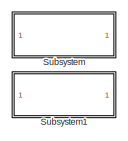
[diagram: root canvas - part 1/4, top center region]
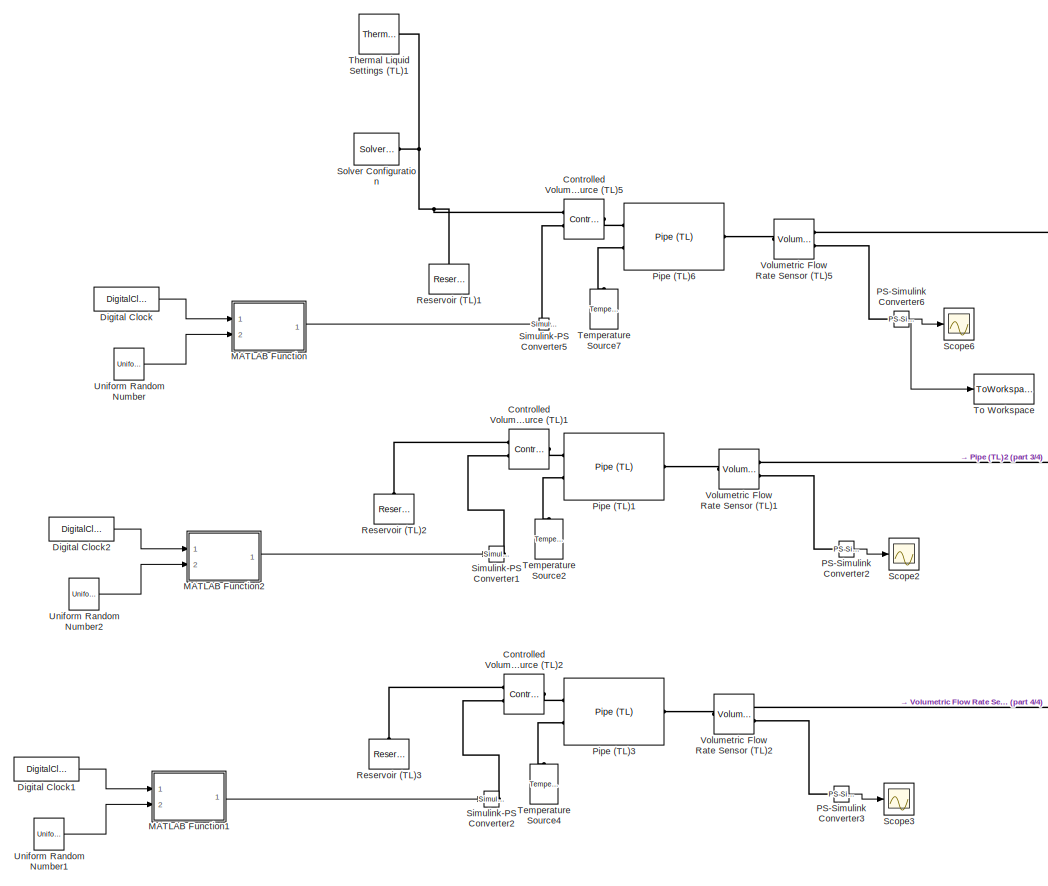
[diagram: root canvas - part 2/4, middle left region]
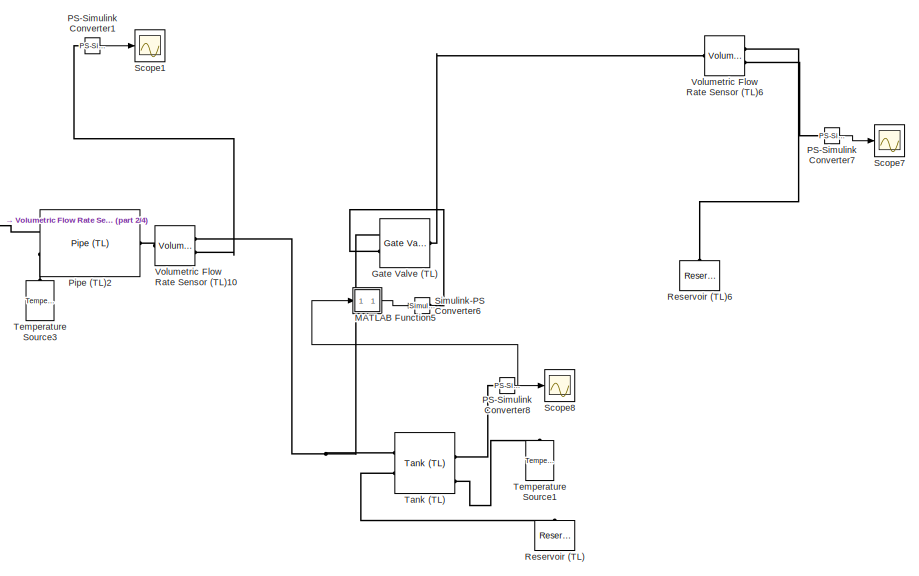
[diagram: root canvas - part 3/4, middle right region]
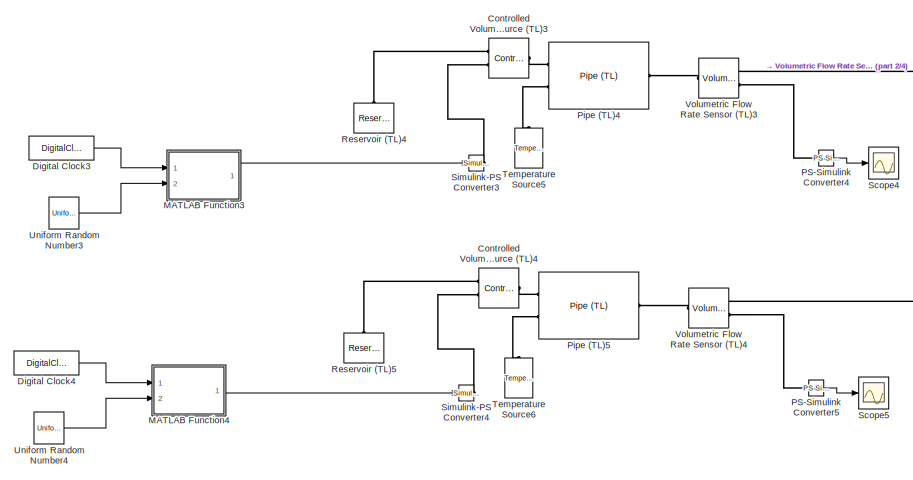
[diagram: root canvas - part 4/4, bottom left region]
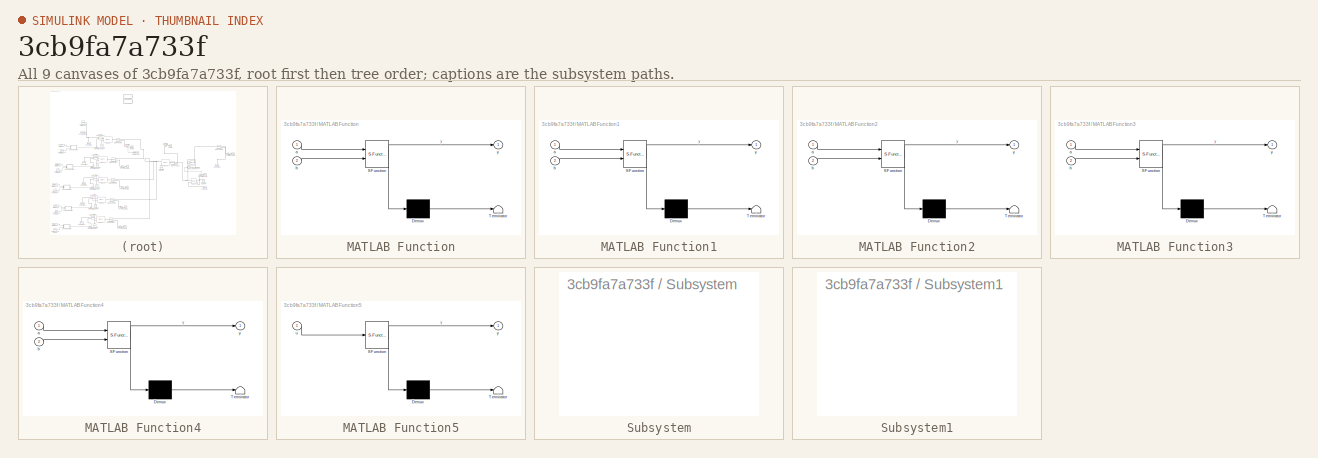
[diagram: thumbnail index - all 9 canvases of the model, root first then tree order]
MODEL slx_3cb9fa7a733f
KIND model
CONFIG AbsTol = 1.0e-3
CONFIG EnableMultiTasking = on
CONFIG FixedStep = 1
CONFIG MaxStep = auto
CONFIG MinStep = auto
CONFIG RelTol = 1.0e-3
CONFIG SampleTimeConstraint = Unconstrained
CONFIG Solver = VariableStepAuto
CONFIG SolverName = VariableStepAuto
CONFIG StartTime = 0
CONFIG StopTime = 24
BLOCK [Reference] Controlled Volumetric Flow Rate Source (TL)1  REF=fl_lib/Thermal Liquid/Sources/Controlled
Volumetric Flow Rate
Source (TL)
  Ports = [0, 0, 0, 0, 0, 2, 1]
  SourceBlock = fl_lib/Thermal Liquid/Sources/Controlled\nVolumetric Flow Rate\nSource (TL)
  SourceProductBaseCode = SS
  SourceProductName = Simscape
  SourceType = Controlled\nVolumetric Flow Rate\nSource (TL)
BLOCK [Reference] Controlled Volumetric Flow Rate Source (TL)2  REF=fl_lib/Thermal Liquid/Sources/Controlled
Volumetric Flow Rate
Source (TL)
  Ports = [0, 0, 0, 0, 0, 2, 1]
  SourceBlock = fl_lib/Thermal Liquid/Sources/Controlled\nVolumetric Flow Rate\nSource (TL)
  SourceProductBaseCode = SS
  SourceProductName = Simscape
  SourceType = Controlled\nVolumetric Flow Rate\nSource (TL)
BLOCK [Reference] Controlled Volumetric Flow Rate Source (TL)3  REF=fl_lib/Thermal Liquid/Sources/Controlled
Volumetric Flow Rate
Source (TL)
  Ports = [0, 0, 0, 0, 0, 2, 1]
  SourceBlock = fl_lib/Thermal Liquid/Sources/Controlled\nVolumetric Flow Rate\nSource (TL)
  SourceProductBaseCode = SS
  SourceProductName = Simscape
  SourceType = Controlled\nVolumetric Flow Rate\nSource (TL)
BLOCK [Reference] Controlled Volumetric Flow Rate Source (TL)4  REF=fl_lib/Thermal Liquid/Sources/Controlled
Volumetric Flow Rate
Source (TL)
  Ports = [0, 0, 0, 0, 0, 2, 1]
  SourceBlock = fl_lib/Thermal Liquid/Sources/Controlled\nVolumetric Flow Rate\nSource (TL)
  SourceProductBaseCode = SS
  SourceProductName = Simscape
  SourceType = Controlled\nVolumetric Flow Rate\nSource (TL)
BLOCK [Reference] Controlled Volumetric Flow Rate Source (TL)5  REF=fl_lib/Thermal Liquid/Sources/Controlled
Volumetric Flow Rate
Source (TL)
  Ports = [0, 0, 0, 0, 0, 2, 1]
  SourceBlock = fl_lib/Thermal Liquid/Sources/Controlled\nVolumetric Flow Rate\nSource (TL)
  SourceProductBaseCode = SS
  SourceProductName = Simscape
  SourceType = Controlled\nVolumetric Flow Rate\nSource (TL)
BLOCK [DigitalClock] Digital Clock
BLOCK [DigitalClock] Digital Clock1
BLOCK [DigitalClock] Digital Clock2
BLOCK [DigitalClock] Digital Clock3
BLOCK [DigitalClock] Digital Clock4
BLOCK [Reference] Gate Valve (TL)  REF=SimscapeFluids_lib/Thermal Liquid/Valves & Orifices/Flow Control Valves/Gate Valve (TL)
  Ports = [0, 0, 0, 0, 0, 2, 1]
  SourceBlock = SimscapeFluids_lib/Thermal Liquid/Valves & Orifices/Flow Control Valves/Gate Valve (TL)
  SourceProductBaseCode = SH
  SourceProductName = Simscape Fluids
  SourceType = Gate Valve (TL)
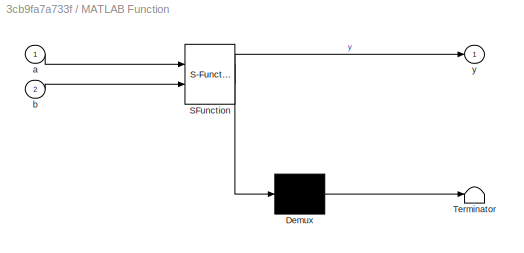
BLOCK [SubSystem] MATLAB Function
  ErrorFcn = Stateflow.Translate.translate
  PermitHierarchicalResolution = ExplicitOnly
  Ports = [2, 1]
  RequestExecContextInheritance = off
  SFBlockType = MATLAB Function
  TreatAsAtomicUnit = on
BLOCK [Demux] MATLAB Function/ Demux 
  Outputs = 1
  Ports = [1, 1]
BLOCK [S-Function] MATLAB Function/ SFunction 
  EnableBusSupport = on
  FunctionName = sf_sfun
  PortCounts = [2 2]
  Ports = [2, 2]
  SFcnIsStateOwnerBlock = off
  SFunctionDeploymentMode = off
  Tag = Stateflow S-Function valveSoneAtos_Simulink 2
BLOCK [Terminator] MATLAB Function/ Terminator 
BLOCK [Inport] MATLAB Function/a
  IconDisplay = Port number
BLOCK [Inport] MATLAB Function/b
  IconDisplay = Port number
  Port = 2
BLOCK [Outport] MATLAB Function/y
  IconDisplay = Port number
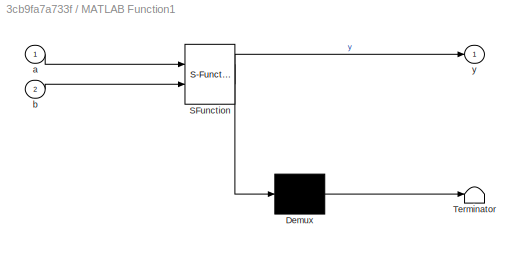
BLOCK [SubSystem] MATLAB Function1
  ErrorFcn = Stateflow.Translate.translate
  PermitHierarchicalResolution = ExplicitOnly
  Ports = [2, 1]
  RequestExecContextInheritance = off
  SFBlockType = MATLAB Function
  TreatAsAtomicUnit = on
BLOCK [Demux] MATLAB Function1/ Demux 
  Outputs = 1
  Ports = [1, 1]
BLOCK [S-Function] MATLAB Function1/ SFunction 
  EnableBusSupport = on
  FunctionName = sf_sfun
  PortCounts = [2 2]
  Ports = [2, 2]
  SFcnIsStateOwnerBlock = off
  SFunctionDeploymentMode = off
  Tag = Stateflow S-Function valveSoneAtos_Simulink 1
BLOCK [Terminator] MATLAB Function1/ Terminator 
BLOCK [Inport] MATLAB Function1/a
  IconDisplay = Port number
BLOCK [Inport] MATLAB Function1/b
  IconDisplay = Port number
  Port = 2
BLOCK [Outport] MATLAB Function1/y
  IconDisplay = Port number
BLOCK [SubSystem] MATLAB Function2
  ErrorFcn = Stateflow.Translate.translate
  PermitHierarchicalResolution = ExplicitOnly
  Ports = [2, 1]
  RequestExecContextInheritance = off
  SFBlockType = MATLAB Function
  TreatAsAtomicUnit = on
BLOCK [Demux] MATLAB Function2/ Demux 
  Outputs = 1
  Ports = [1, 1]
BLOCK [S-Function] MATLAB Function2/ SFunction 
  EnableBusSupport = on
  FunctionName = sf_sfun
  PortCounts = [2 2]
  Ports = [2, 2]
  SFcnIsStateOwnerBlock = off
  SFunctionDeploymentMode = off
  Tag = Stateflow S-Function valveSoneAtos_Simulink 3
BLOCK [Terminator] MATLAB Function2/ Terminator 
BLOCK [Inport] MATLAB Function2/a
  IconDisplay = Port number
BLOCK [Inport] MATLAB Function2/b
  IconDisplay = Port number
  Port = 2
BLOCK [Outport] MATLAB Function2/y
  IconDisplay = Port number
BLOCK [SubSystem] MATLAB Function3
  ErrorFcn = Stateflow.Translate.translate
  PermitHierarchicalResolution = ExplicitOnly
  Ports = [2, 1]
  RequestExecContextInheritance = off
  SFBlockType = MATLAB Function
  TreatAsAtomicUnit = on
BLOCK [Demux] MATLAB Function3/ Demux 
  Outputs = 1
  Ports = [1, 1]
BLOCK [S-Function] MATLAB Function3/ SFunction 
  EnableBusSupport = on
  FunctionName = sf_sfun
  PortCounts = [2 2]
  Ports = [2, 2]
  SFcnIsStateOwnerBlock = off
  SFunctionDeploymentMode = off
  Tag = Stateflow S-Function valveSoneAtos_Simulink 4
BLOCK [Terminator] MATLAB Function3/ Terminator 
BLOCK [Inport] MATLAB Function3/a
  IconDisplay = Port number
BLOCK [Inport] MATLAB Function3/b
  IconDisplay = Port number
  Port = 2
BLOCK [Outport] MATLAB Function3/y
  IconDisplay = Port number
BLOCK [SubSystem] MATLAB Function4
  ErrorFcn = Stateflow.Translate.translate
  PermitHierarchicalResolution = ExplicitOnly
  Ports = [2, 1]
  RequestExecContextInheritance = off
  SFBlockType = MATLAB Function
  TreatAsAtomicUnit = on
BLOCK [Demux] MATLAB Function4/ Demux 
  Outputs = 1
  Ports = [1, 1]
BLOCK [S-Function] MATLAB Function4/ SFunction 
  EnableBusSupport = on
  FunctionName = sf_sfun
  PortCounts = [2 2]
  Ports = [2, 2]
  SFcnIsStateOwnerBlock = off
  SFunctionDeploymentMode = off
  Tag = Stateflow S-Function valveSoneAtos_Simulink 5
BLOCK [Terminator] MATLAB Function4/ Terminator 
BLOCK [Inport] MATLAB Function4/a
  IconDisplay = Port number
BLOCK [Inport] MATLAB Function4/b
  IconDisplay = Port number
  Port = 2
BLOCK [Outport] MATLAB Function4/y
  IconDisplay = Port number
BLOCK [SubSystem] MATLAB Function5
  ErrorFcn = Stateflow.Translate.translate
  PermitHierarchicalResolution = ExplicitOnly
  Ports = [1, 1]
  RequestExecContextInheritance = off
  SFBlockType = MATLAB Function
  TreatAsAtomicUnit = on
BLOCK [Demux] MATLAB Function5/ Demux 
  Outputs = 1
  Ports = [1, 1]
BLOCK [S-Function] MATLAB Function5/ SFunction 
  EnableBusSupport = on
  FunctionName = sf_sfun
  PortCounts = [1 2]
  Ports = [1, 2]
  SFcnIsStateOwnerBlock = off
  SFunctionDeploymentMode = off
  Tag = Stateflow S-Function valveSoneAtos_Simulink 6
BLOCK [Terminator] MATLAB Function5/ Terminator 
BLOCK [Inport] MATLAB Function5/u
  IconDisplay = Port number
BLOCK [Outport] MATLAB Function5/y
  IconDisplay = Port number
BLOCK [Reference] PS-Simulink Converter1  REF=nesl_utility/PS-Simulink
Converter
  Ports = [0, 1, 0, 0, 0, 1]
  SourceBlock = nesl_utility/PS-Simulink\nConverter
  SourceProductBaseCode = SS
  SourceProductName = Simscape
  SourceType = PS-Simulink\nConverter
BLOCK [Reference] PS-Simulink Converter2  REF=nesl_utility/PS-Simulink
Converter
  Ports = [0, 1, 0, 0, 0, 1]
  SourceBlock = nesl_utility/PS-Simulink\nConverter
  SourceProductBaseCode = SS
  SourceProductName = Simscape
  SourceType = PS-Simulink\nConverter
BLOCK [Reference] PS-Simulink Converter3  REF=nesl_utility/PS-Simulink
Converter
  Ports = [0, 1, 0, 0, 0, 1]
  SourceBlock = nesl_utility/PS-Simulink\nConverter
  SourceProductBaseCode = SS
  SourceProductName = Simscape
  SourceType = PS-Simulink\nConverter
BLOCK [Reference] PS-Simulink Converter4  REF=nesl_utility/PS-Simulink
Converter
  Ports = [0, 1, 0, 0, 0, 1]
  SourceBlock = nesl_utility/PS-Simulink\nConverter
  SourceProductBaseCode = SS
  SourceProductName = Simscape
  SourceType = PS-Simulink\nConverter
BLOCK [Reference] PS-Simulink Converter5  REF=nesl_utility/PS-Simulink
Converter
  Ports = [0, 1, 0, 0, 0, 1]
  SourceBlock = nesl_utility/PS-Simulink\nConverter
  SourceProductBaseCode = SS
  SourceProductName = Simscape
  SourceType = PS-Simulink\nConverter
BLOCK [Reference] PS-Simulink Converter6  REF=nesl_utility/PS-Simulink
Converter
  Ports = [0, 1, 0, 0, 0, 1]
  SourceBlock = nesl_utility/PS-Simulink\nConverter
  SourceProductBaseCode = SS
  SourceProductName = Simscape
  SourceType = PS-Simulink\nConverter
BLOCK [Reference] PS-Simulink Converter7  REF=nesl_utility/PS-Simulink
Converter
  Ports = [0, 1, 0, 0, 0, 1]
  SourceBlock = nesl_utility/PS-Simulink\nConverter
  SourceProductBaseCode = SS
  SourceProductName = Simscape
  SourceType = PS-Simulink\nConverter
BLOCK [Reference] PS-Simulink Converter8  REF=nesl_utility/PS-Simulink
Converter
  Ports = [0, 1, 0, 0, 0, 1]
  SourceBlock = nesl_utility/PS-Simulink\nConverter
  SourceProductBaseCode = SS
  SourceProductName = Simscape
  SourceType = PS-Simulink\nConverter
BLOCK [Reference] Pipe (TL)1  REF=fl_lib/Thermal Liquid/Elements/Pipe (TL)
  Ports = [0, 0, 0, 0, 0, 2, 1]
  SourceBlock = fl_lib/Thermal Liquid/Elements/Pipe (TL)
  SourceProductBaseCode = SS
  SourceProductName = Simscape
  SourceType = Pipe (TL)
BLOCK [Reference] Pipe (TL)2  REF=fl_lib/Thermal Liquid/Elements/Pipe (TL)
  Ports = [0, 0, 0, 0, 0, 2, 1]
  SourceBlock = fl_lib/Thermal Liquid/Elements/Pipe (TL)
  SourceProductBaseCode = SS
  SourceProductName = Simscape
  SourceType = Pipe (TL)
BLOCK [Reference] Pipe (TL)3  REF=fl_lib/Thermal Liquid/Elements/Pipe (TL)
  Ports = [0, 0, 0, 0, 0, 2, 1]
  SourceBlock = fl_lib/Thermal Liquid/Elements/Pipe (TL)
  SourceProductBaseCode = SS
  SourceProductName = Simscape
  SourceType = Pipe (TL)
BLOCK [Reference] Pipe (TL)4  REF=fl_lib/Thermal Liquid/Elements/Pipe (TL)
  Ports = [0, 0, 0, 0, 0, 2, 1]
  SourceBlock = fl_lib/Thermal Liquid/Elements/Pipe (TL)
  SourceProductBaseCode = SS
  SourceProductName = Simscape
  SourceType = Pipe (TL)
BLOCK [Reference] Pipe (TL)5  REF=fl_lib/Thermal Liquid/Elements/Pipe (TL)
  Ports = [0, 0, 0, 0, 0, 2, 1]
  SourceBlock = fl_lib/Thermal Liquid/Elements/Pipe (TL)
  SourceProductBaseCode = SS
  SourceProductName = Simscape
  SourceType = Pipe (TL)
BLOCK [Reference] Pipe (TL)6  REF=fl_lib/Thermal Liquid/Elements/Pipe (TL)
  Ports = [0, 0, 0, 0, 0, 2, 1]
  SourceBlock = fl_lib/Thermal Liquid/Elements/Pipe (TL)
  SourceProductBaseCode = SS
  SourceProductName = Simscape
  SourceType = Pipe (TL)
BLOCK [Reference] Reservoir (TL)  REF=fl_lib/Thermal Liquid/Elements/Reservoir (TL)
  Ports = [0, 0, 0, 0, 0, 1]
  SourceBlock = fl_lib/Thermal Liquid/Elements/Reservoir (TL)
  SourceProductBaseCode = SS
  SourceProductName = Simscape
  SourceType = Reservoir (TL)
BLOCK [Reference] Reservoir (TL)1  REF=fl_lib/Thermal Liquid/Elements/Reservoir (TL)
  Ports = [0, 0, 0, 0, 0, 1]
  SourceBlock = fl_lib/Thermal Liquid/Elements/Reservoir (TL)
  SourceProductBaseCode = SS
  SourceProductName = Simscape
  SourceType = Reservoir (TL)
BLOCK [Reference] Reservoir (TL)2  REF=fl_lib/Thermal Liquid/Elements/Reservoir (TL)
  Ports = [0, 0, 0, 0, 0, 1]
  SourceBlock = fl_lib/Thermal Liquid/Elements/Reservoir (TL)
  SourceProductBaseCode = SS
  SourceProductName = Simscape
  SourceType = Reservoir (TL)
BLOCK [Reference] Reservoir (TL)3  REF=fl_lib/Thermal Liquid/Elements/Reservoir (TL)
  Ports = [0, 0, 0, 0, 0, 1]
  SourceBlock = fl_lib/Thermal Liquid/Elements/Reservoir (TL)
  SourceProductBaseCode = SS
  SourceProductName = Simscape
  SourceType = Reservoir (TL)
BLOCK [Reference] Reservoir (TL)4  REF=fl_lib/Thermal Liquid/Elements/Reservoir (TL)
  Ports = [0, 0, 0, 0, 0, 1]
  SourceBlock = fl_lib/Thermal Liquid/Elements/Reservoir (TL)
  SourceProductBaseCode = SS
  SourceProductName = Simscape
  SourceType = Reservoir (TL)
BLOCK [Reference] Reservoir (TL)5  REF=fl_lib/Thermal Liquid/Elements/Reservoir (TL)
  Ports = [0, 0, 0, 0, 0, 1]
  SourceBlock = fl_lib/Thermal Liquid/Elements/Reservoir (TL)
  SourceProductBaseCode = SS
  SourceProductName = Simscape
  SourceType = Reservoir (TL)
BLOCK [Reference] Reservoir (TL)6  REF=fl_lib/Thermal Liquid/Elements/Reservoir (TL)
  Ports = [0, 0, 0, 0, 0, 1]
  SourceBlock = fl_lib/Thermal Liquid/Elements/Reservoir (TL)
  SourceProductBaseCode = SS
  SourceProductName = Simscape
  SourceType = Reservoir (TL)
BLOCK [Scope] Scope1
  Floating = off
  NumInputPorts = 1
  Ports = [1]
  ScopeSpecificationString = Simulink.scopes.TimeScopeBlockCfg('CurrentConfiguration', extmgr.ConfigurationSet(extmgr.Configuration('Core','General UI',true),extmgr.Configuration('Core','Source UI',true),extmgr.Configuration('Sources','WiredSimulink',true,'DataLoggingVariableName','ScopeData1'),extmgr.Configuration('Visuals','Time Domain',true,'SerializedDisplays',{struct('MinYLimReal','-44.04215','MaxYLimReal','4.89349','YLa...<+1439ch>
BLOCK [Scope] Scope2
  Floating = off
  NumInputPorts = 1
  Ports = [1]
  ScopeSpecificationString = Simulink.scopes.TimeScopeBlockCfg('CurrentConfiguration', extmgr.ConfigurationSet(extmgr.Configuration('Core','General UI',true),extmgr.Configuration('Core','Source UI',true),extmgr.Configuration('Sources','WiredSimulink',true,'DataLoggingVariableName','ScopeData2'),extmgr.Configuration('Visuals','Time Domain',true,'SerializedDisplays',{struct('MinYLimReal','-0.86249','MaxYLimReal','7.76238','YLab...<+1439ch>
BLOCK [Scope] Scope3
  Floating = off
  NumInputPorts = 1
  Ports = [1]
  ScopeSpecificationString = Simulink.scopes.TimeScopeBlockCfg('CurrentConfiguration', extmgr.ConfigurationSet(extmgr.Configuration('Core','General UI',true),extmgr.Configuration('Core','Source UI',true),extmgr.Configuration('Sources','WiredSimulink',true,'DataLoggingVariableName','ScopeData3'),extmgr.Configuration('Visuals','Time Domain',true,'SerializedDisplays',{struct('MinYLimReal','-0.49988','MaxYLimReal','4.49888','YLab...<+1436ch>
BLOCK [Scope] Scope4
  Floating = off
  NumInputPorts = 1
  Ports = [1]
  ScopeSpecificationString = Simulink.scopes.TimeScopeBlockCfg('CurrentConfiguration', extmgr.ConfigurationSet(extmgr.Configuration('Core','General UI',true),extmgr.Configuration('Core','Source UI',true),extmgr.Configuration('Sources','WiredSimulink',true,'DataLoggingVariableName','ScopeData4'),extmgr.Configuration('Visuals','Time Domain',true,'SerializedDisplays',{struct('MinYLimReal','-4.99179','MaxYLimReal','11.67286','YLa...<+1439ch>
BLOCK [Scope] Scope5
  Floating = off
  NumInputPorts = 1
  Ports = [1]
  ScopeSpecificationString = Simulink.scopes.TimeScopeBlockCfg('CurrentConfiguration', extmgr.ConfigurationSet(extmgr.Configuration('Core','General UI',true),extmgr.Configuration('Core','Source UI',true),extmgr.Configuration('Sources','WiredSimulink',true,'DataLoggingVariableName','ScopeData5'),extmgr.Configuration('Visuals','Time Domain',true,'SerializedDisplays',{struct('MinYLimReal','-0.49988','MaxYLimReal','4.49888','YLab...<+1436ch>
BLOCK [Scope] Scope6
  Floating = off
  NumInputPorts = 1
  Ports = [1]
  ScopeSpecificationString = Simulink.scopes.TimeScopeBlockCfg('CurrentConfiguration', extmgr.ConfigurationSet(extmgr.Configuration('Core','General UI',true),extmgr.Configuration('Core','Source UI',true),extmgr.Configuration('Sources','WiredSimulink',true),extmgr.Configuration('Visuals','Time Domain',true,'SerializedDisplays',{struct('MinYLimReal','-3.66194','MaxYLimReal','32.95743','YLabelReal','','MinYLimMag','0.00000','Max...<+1448ch>
BLOCK [Scope] Scope7
  Floating = off
  NumInputPorts = 1
  Ports = [1]
  ScopeSpecificationString = Simulink.scopes.TimeScopeBlockCfg('CurrentConfiguration', extmgr.ConfigurationSet(extmgr.Configuration('Core','General UI',true),extmgr.Configuration('Core','Source UI',true),extmgr.Configuration('Sources','WiredSimulink',true,'DataLoggingVariableName','ScopeData1'),extmgr.Configuration('Visuals','Time Domain',true,'SerializedDisplays',{struct('MinYLimReal','-16.69026','MaxYLimReal','150.21238','Y...<+1493ch>
BLOCK [Scope] Scope8
  Floating = off
  NumInputPorts = 1
  Ports = [1]
  ScopeSpecificationString = Simulink.scopes.TimeScopeBlockCfg('CurrentConfiguration', extmgr.ConfigurationSet(extmgr.Configuration('Core','General UI',true),extmgr.Configuration('Core','Source UI',true),extmgr.Configuration('Sources','WiredSimulink',true,'DataLoggingVariableName','ScopeData2'),extmgr.Configuration('Visuals','Time Domain',true,'SerializedDisplays',{struct('MinYLimReal','6.55576','MaxYLimReal','40.99698','YLab...<+1481ch>
BLOCK [Reference] Simulink-PS Converter1  REF=nesl_utility/Simulink-PS
Converter
  Ports = [1, 0, 0, 0, 0, 0, 1]
  SourceBlock = nesl_utility/Simulink-PS\nConverter
  SourceProductBaseCode = SS
  SourceProductName = Simscape
  SourceType = Simulink-PS\nConverter
BLOCK [Reference] Simulink-PS Converter2  REF=nesl_utility/Simulink-PS
Converter
  Ports = [1, 0, 0, 0, 0, 0, 1]
  SourceBlock = nesl_utility/Simulink-PS\nConverter
  SourceProductBaseCode = SS
  SourceProductName = Simscape
  SourceType = Simulink-PS\nConverter
BLOCK [Reference] Simulink-PS Converter3  REF=nesl_utility/Simulink-PS
Converter
  Ports = [1, 0, 0, 0, 0, 0, 1]
  SourceBlock = nesl_utility/Simulink-PS\nConverter
  SourceProductBaseCode = SS
  SourceProductName = Simscape
  SourceType = Simulink-PS\nConverter
BLOCK [Reference] Simulink-PS Converter4  REF=nesl_utility/Simulink-PS
Converter
  Ports = [1, 0, 0, 0, 0, 0, 1]
  SourceBlock = nesl_utility/Simulink-PS\nConverter
  SourceProductBaseCode = SS
  SourceProductName = Simscape
  SourceType = Simulink-PS\nConverter
BLOCK [Reference] Simulink-PS Converter5  REF=nesl_utility/Simulink-PS
Converter
  Ports = [1, 0, 0, 0, 0, 0, 1]
  SourceBlock = nesl_utility/Simulink-PS\nConverter
  SourceProductBaseCode = SS
  SourceProductName = Simscape
  SourceType = Simulink-PS\nConverter
BLOCK [Reference] Simulink-PS Converter6  REF=nesl_utility/Simulink-PS
Converter
  Ports = [1, 0, 0, 0, 0, 0, 1]
  SourceBlock = nesl_utility/Simulink-PS\nConverter
  SourceProductBaseCode = SS
  SourceProductName = Simscape
  SourceType = Simulink-PS\nConverter
BLOCK [Reference] Solver Configuration  REF=nesl_utility/Solver
Configuration
  Ports = [0, 0, 0, 0, 0, 0, 1]
  SourceBlock = nesl_utility/Solver\nConfiguration
  SourceProductBaseCode = SS
  SourceProductName = Simscape
  SourceType = Solver\nConfiguration
BLOCK [SubSystem] Subsystem
  OpenFcn = open_system('simscape')
  Ports = []
  RequestExecContextInheritance = off
  ShowPortLabels = none
BLOCK [SubSystem] Subsystem1
  OpenFcn = load_system('fl_lib');\nopen_system('fl_lib/Thermal Liquid');
  Ports = []
  RequestExecContextInheritance = off
  ShowPortLabels = none
BLOCK [Reference] Tank (TL)  REF=SimscapeFluids_lib/Thermal Liquid/Tanks & Accumulators/Tank (TL)
  Ports = [0, 0, 0, 0, 0, 2, 4]
  SourceBlock = SimscapeFluids_lib/Thermal Liquid/Tanks & Accumulators/Tank (TL)
  SourceProductBaseCode = SH
  SourceProductName = Simscape Fluids
  SourceType = Tank (TL)
BLOCK [Reference] Temperature Source1  REF=fl_lib/Thermal/Thermal Sources/Temperature Source
  Ports = [0, 0, 0, 0, 0, 1]
  SourceBlock = fl_lib/Thermal/Thermal Sources/Temperature Source
  SourceProductBaseCode = SS
  SourceProductName = Simscape
  SourceType = Temperature Source
BLOCK [Reference] Temperature Source2  REF=fl_lib/Thermal/Thermal Sources/Temperature Source
  Ports = [0, 0, 0, 0, 0, 1]
  SourceBlock = fl_lib/Thermal/Thermal Sources/Temperature Source
  SourceProductBaseCode = SS
  SourceProductName = Simscape
  SourceType = Temperature Source
BLOCK [Reference] Temperature Source3  REF=fl_lib/Thermal/Thermal Sources/Temperature Source
  Ports = [0, 0, 0, 0, 0, 1]
  SourceBlock = fl_lib/Thermal/Thermal Sources/Temperature Source
  SourceProductBaseCode = SS
  SourceProductName = Simscape
  SourceType = Temperature Source
BLOCK [Reference] Temperature Source4  REF=fl_lib/Thermal/Thermal Sources/Temperature Source
  Ports = [0, 0, 0, 0, 0, 1]
  SourceBlock = fl_lib/Thermal/Thermal Sources/Temperature Source
  SourceProductBaseCode = SS
  SourceProductName = Simscape
  SourceType = Temperature Source
BLOCK [Reference] Temperature Source5  REF=fl_lib/Thermal/Thermal Sources/Temperature Source
  Ports = [0, 0, 0, 0, 0, 1]
  SourceBlock = fl_lib/Thermal/Thermal Sources/Temperature Source
  SourceProductBaseCode = SS
  SourceProductName = Simscape
  SourceType = Temperature Source
BLOCK [Reference] Temperature Source6  REF=fl_lib/Thermal/Thermal Sources/Temperature Source
  Ports = [0, 0, 0, 0, 0, 1]
  SourceBlock = fl_lib/Thermal/Thermal Sources/Temperature Source
  SourceProductBaseCode = SS
  SourceProductName = Simscape
  SourceType = Temperature Source
BLOCK [Reference] Temperature Source7  REF=fl_lib/Thermal/Thermal Sources/Temperature Source
  Ports = [0, 0, 0, 0, 0, 1]
  SourceBlock = fl_lib/Thermal/Thermal Sources/Temperature Source
  SourceProductBaseCode = SS
  SourceProductName = Simscape
  SourceType = Temperature Source
BLOCK [Reference] Thermal Liquid Settings (TL)1  REF=fl_lib/Thermal Liquid/Utilities/Thermal Liquid
Settings (TL)
  Ports = [0, 0, 0, 0, 0, 0, 1]
  SourceBlock = fl_lib/Thermal Liquid/Utilities/Thermal Liquid\nSettings (TL)
  SourceProductBaseCode = SS
  SourceProductName = Simscape
  SourceType = Thermal Liquid\nSettings (TL)
BLOCK [ToWorkspace] To Workspace
  FixptAsFi = on
  MaxDataPoints = inf
  Ports = [1]
  SampleTime = -1
  Save2DSignal = 3-D array (concatenate along third dimension)
  SaveFormat = Timeseries
  VariableName = TT
BLOCK [UniformRandomNumber] Uniform Random Number
  Maximum = 6
  Minimum = 4
  SampleTime = 1
  VectorParams1D = off
BLOCK [UniformRandomNumber] Uniform Random Number1
  Maximum = 6
  Minimum = 4
  SampleTime = 1
  VectorParams1D = off
BLOCK [UniformRandomNumber] Uniform Random Number2
  Maximum = 6
  Minimum = 4
  SampleTime = 1
  VectorParams1D = off
BLOCK [UniformRandomNumber] Uniform Random Number3
  Maximum = 6
  Minimum = 4
  SampleTime = 1
  VectorParams1D = off
BLOCK [UniformRandomNumber] Uniform Random Number4
  Maximum = 6
  Minimum = 4
  SampleTime = 1
  VectorParams1D = off
BLOCK [Reference] Volumetric Flow Rate Sensor (TL)1  REF=fl_lib/Thermal Liquid/Sensors/Volumetric Flow Rate
Sensor (TL)
  Ports = [0, 0, 0, 0, 0, 1, 2]
  SourceBlock = fl_lib/Thermal Liquid/Sensors/Volumetric Flow Rate\nSensor (TL)
  SourceProductBaseCode = SS
  SourceProductName = Simscape
  SourceType = Volumetric Flow Rate\nSensor (TL)
BLOCK [Reference] Volumetric Flow Rate Sensor (TL)10  REF=fl_lib/Thermal Liquid/Sensors/Volumetric Flow Rate
Sensor (TL)
  Ports = [0, 0, 0, 0, 0, 1, 2]
  SourceBlock = fl_lib/Thermal Liquid/Sensors/Volumetric Flow Rate\nSensor (TL)
  SourceProductBaseCode = SS
  SourceProductName = Simscape
  SourceType = Volumetric Flow Rate\nSensor (TL)
BLOCK [Reference] Volumetric Flow Rate Sensor (TL)2  REF=fl_lib/Thermal Liquid/Sensors/Volumetric Flow Rate
Sensor (TL)
  Ports = [0, 0, 0, 0, 0, 1, 2]
  SourceBlock = fl_lib/Thermal Liquid/Sensors/Volumetric Flow Rate\nSensor (TL)
  SourceProductBaseCode = SS
  SourceProductName = Simscape
  SourceType = Volumetric Flow Rate\nSensor (TL)
BLOCK [Reference] Volumetric Flow Rate Sensor (TL)3  REF=fl_lib/Thermal Liquid/Sensors/Volumetric Flow Rate
Sensor (TL)
  Ports = [0, 0, 0, 0, 0, 1, 2]
  SourceBlock = fl_lib/Thermal Liquid/Sensors/Volumetric Flow Rate\nSensor (TL)
  SourceProductBaseCode = SS
  SourceProductName = Simscape
  SourceType = Volumetric Flow Rate\nSensor (TL)
BLOCK [Reference] Volumetric Flow Rate Sensor (TL)4  REF=fl_lib/Thermal Liquid/Sensors/Volumetric Flow Rate
Sensor (TL)
  Ports = [0, 0, 0, 0, 0, 1, 2]
  SourceBlock = fl_lib/Thermal Liquid/Sensors/Volumetric Flow Rate\nSensor (TL)
  SourceProductBaseCode = SS
  SourceProductName = Simscape
  SourceType = Volumetric Flow Rate\nSensor (TL)
BLOCK [Reference] Volumetric Flow Rate Sensor (TL)5  REF=fl_lib/Thermal Liquid/Sensors/Volumetric Flow Rate
Sensor (TL)
  Ports = [0, 0, 0, 0, 0, 1, 2]
  SourceBlock = fl_lib/Thermal Liquid/Sensors/Volumetric Flow Rate\nSensor (TL)
  SourceProductBaseCode = SS
  SourceProductName = Simscape
  SourceType = Volumetric Flow Rate\nSensor (TL)
BLOCK [Reference] Volumetric Flow Rate Sensor (TL)6  REF=fl_lib/Thermal Liquid/Sensors/Volumetric Flow Rate
Sensor (TL)
  Ports = [0, 0, 0, 0, 0, 1, 2]
  SourceBlock = fl_lib/Thermal Liquid/Sensors/Volumetric Flow Rate\nSensor (TL)
  SourceProductBaseCode = SS
  SourceProductName = Simscape
  SourceType = Volumetric Flow Rate\nSensor (TL)
LINE Digital Clock1:1 -> MATLAB Function1:1
LINE Digital Clock2:1 -> MATLAB Function2:1
LINE Digital Clock3:1 -> MATLAB Function3:1
LINE Digital Clock4:1 -> MATLAB Function4:1
LINE Digital Clock:1 -> MATLAB Function:1
LINE MATLAB Function1:1 -> Simulink-PS Converter2:1
LINE MATLAB Function2:1 -> Simulink-PS Converter1:1
LINE MATLAB Function3:1 -> Simulink-PS Converter3:1
LINE MATLAB Function4:1 -> Simulink-PS Converter4:1
LINE MATLAB Function5:1 -> Simulink-PS Converter6:1
LINE MATLAB Function:1 -> Simulink-PS Converter5:1
LINE PS-Simulink Converter1:1 -> Scope1:1
LINE PS-Simulink Converter2:1 -> Scope2:1
LINE PS-Simulink Converter3:1 -> Scope3:1
LINE PS-Simulink Converter4:1 -> Scope4:1
LINE PS-Simulink Converter5:1 -> Scope5:1
NET PS-Simulink Converter6:1 -> Scope6:1, To Workspace:1
LINE PS-Simulink Converter7:1 -> Scope7:1
NET PS-Simulink Converter8:1 -> MATLAB Function5:1, Scope8:1
LINE Uniform Random Number1:1 -> MATLAB Function1:2
LINE Uniform Random Number2:1 -> MATLAB Function2:2
LINE Uniform Random Number3:1 -> MATLAB Function3:2
LINE Uniform Random Number4:1 -> MATLAB Function4:2
LINE Uniform Random Number:1 -> MATLAB Function:2
PLINE Controlled Volumetric Flow Rate Source (TL)1:LConn1 -- Reservoir (TL)2:LConn1
PLINE Controlled Volumetric Flow Rate Source (TL)1:LConn2 -- Simulink-PS Converter1:RConn1
PLINE Controlled Volumetric Flow Rate Source (TL)1:RConn1 -- Pipe (TL)1:LConn1
PLINE Controlled Volumetric Flow Rate Source (TL)2:LConn1 -- Reservoir (TL)3:LConn1
PLINE Controlled Volumetric Flow Rate Source (TL)2:LConn2 -- Simulink-PS Converter2:RConn1
PLINE Controlled Volumetric Flow Rate Source (TL)2:RConn1 -- Pipe (TL)3:LConn1
PLINE Controlled Volumetric Flow Rate Source (TL)3:LConn1 -- Reservoir (TL)4:LConn1
PLINE Controlled Volumetric Flow Rate Source (TL)3:LConn2 -- Simulink-PS Converter3:RConn1
PLINE Controlled Volumetric Flow Rate Source (TL)3:RConn1 -- Pipe (TL)4:LConn1
PLINE Controlled Volumetric Flow Rate Source (TL)4:LConn1 -- Reservoir (TL)5:LConn1
PLINE Controlled Volumetric Flow Rate Source (TL)4:LConn2 -- Simulink-PS Converter4:RConn1
PLINE Controlled Volumetric Flow Rate Source (TL)4:RConn1 -- Pipe (TL)5:LConn1
PNET net1: Controlled Volumetric Flow Rate Source (TL)5:LConn1 -- Reservoir (TL)1:LConn1 -- Solver Configuration:RConn1 -- Thermal Liquid Settings (TL)1:RConn1
PLINE Controlled Volumetric Flow Rate Source (TL)5:LConn2 -- Simulink-PS Converter5:RConn1
PLINE Controlled Volumetric Flow Rate Source (TL)5:RConn1 -- Pipe (TL)6:LConn1
PNET net2: Gate Valve (TL):LConn1 -- Tank (TL):LConn1 -- Volumetric Flow Rate Sensor (TL)10:RConn1
PLINE Gate Valve (TL):LConn2 -- Simulink-PS Converter6:RConn1
PLINE Gate Valve (TL):RConn1 -- Volumetric Flow Rate Sensor (TL)6:LConn1
PLINE PS-Simulink Converter1:LConn1 -- Volumetric Flow Rate Sensor (TL)10:RConn2
PLINE PS-Simulink Converter2:LConn1 -- Volumetric Flow Rate Sensor (TL)1:RConn2
PLINE PS-Simulink Converter3:LConn1 -- Volumetric Flow Rate Sensor (TL)2:RConn2
PLINE PS-Simulink Converter4:LConn1 -- Volumetric Flow Rate Sensor (TL)3:RConn2
PLINE PS-Simulink Converter5:LConn1 -- Volumetric Flow Rate Sensor (TL)4:RConn2
PLINE PS-Simulink Converter6:LConn1 -- Volumetric Flow Rate Sensor (TL)5:RConn2
PLINE PS-Simulink Converter7:LConn1 -- Volumetric Flow Rate Sensor (TL)6:RConn2
PLINE PS-Simulink Converter8:LConn1 -- Tank (TL):RConn2
PLINE Pipe (TL)1:LConn2 -- Temperature Source2:LConn1
PLINE Pipe (TL)1:RConn1 -- Volumetric Flow Rate Sensor (TL)1:LConn1
PNET net3: Pipe (TL)2:LConn1 -- Volumetric Flow Rate Sensor (TL)1:RConn1 -- Volumetric Flow Rate Sensor (TL)2:RConn1 -- Volumetric Flow Rate Sensor (TL)3:RConn1 -- Volumetric Flow Rate Sensor (TL)4:RConn1 -- Volumetric Flow Rate Sensor (TL)5:RConn1
PLINE Pipe (TL)2:LConn2 -- Temperature Source3:LConn1
PLINE Pipe (TL)2:RConn1 -- Volumetric Flow Rate Sensor (TL)10:LConn1
PLINE Pipe (TL)3:LConn2 -- Temperature Source4:LConn1
PLINE Pipe (TL)3:RConn1 -- Volumetric Flow Rate Sensor (TL)2:LConn1
PLINE Pipe (TL)4:LConn2 -- Temperature Source5:LConn1
PLINE Pipe (TL)4:RConn1 -- Volumetric Flow Rate Sensor (TL)3:LConn1
PLINE Pipe (TL)5:LConn2 -- Temperature Source6:LConn1
PLINE Pipe (TL)5:RConn1 -- Volumetric Flow Rate Sensor (TL)4:LConn1
PLINE Pipe (TL)6:LConn2 -- Temperature Source7:LConn1
PLINE Pipe (TL)6:RConn1 -- Volumetric Flow Rate Sensor (TL)5:LConn1
PLINE Reservoir (TL)6:LConn1 -- Volumetric Flow Rate Sensor (TL)6:RConn1
PLINE Reservoir (TL):LConn1 -- Tank (TL):LConn2
PLINE Tank (TL):RConn4 -- Temperature Source1:LConn1
note: NET lines group one-source signal fan-out (src -> all destinations, sorted); 1:1 wires keep LINE; PNET lines group multi-terminal physical nets as a canonical sorted terminal list (undirected conserving connections); 2-terminal nets keep the pairwise PLINE form
CHART MATLAB Function1 states=1 transitions=1
  STATE_LABEL 'eML_blk_kernel()'
  STATE_LABEL 'SCRIPT:\nfunction y  = fcn(a , b)\n\nif a >=0 && a <= 6 \n    y = b*2;\nelseif a > 6 && a <= 11\n    y = b * 5 ;\nelseif a > 11 && a <= 17\n    y= b * 2 ;\nelseif a > 17 && a <= 20\n    y = b * 5 ;\nelseif a> 20 && a <= 24\n    y = b * 3 ;\nelse\n    y= 30;\nend\n\n\n'  <repeated x5 — deduplicated; at blocks: MATLAB Function1, MATLAB Function, MATLAB Function2, MATLAB Function3, MATLAB Function4>
CHART MATLAB Function states=1 transitions=1
  STATE_LABEL 'eML_blk_kernel()'
CHART MATLAB Function2 states=1 transitions=1
  STATE_LABEL 'eML_blk_kernel()'
CHART MATLAB Function3 states=1 transitions=1
  STATE_LABEL 'eML_blk_kernel()'
CHART MATLAB Function4 states=1 transitions=1
  STATE_LABEL 'eML_blk_kernel()'
CHART MATLAB Function5 states=1 transitions=1
  STATE_LABEL 'eML_blk_kernel()'
  STATE_LABEL 'SCRIPT:\nfunction y = fcn(u)\n\nif u >= 30\n    y = 6 ;\nelseif u <= 10\n    y = 0 ;\nelse\n    y = 0 ;\nend\n'
